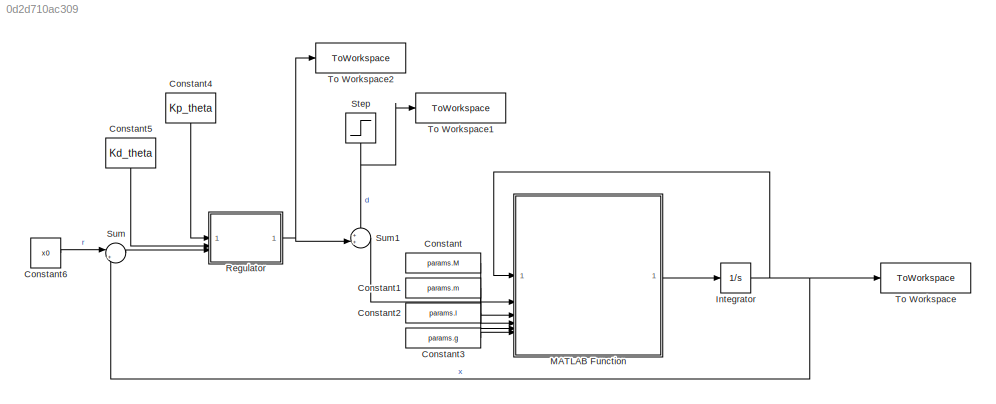
MODEL slx_0d2d710ac309
KIND model
CONFIG AbsTol = 1e-8
CONFIG EnableMultiTasking = off
CONFIG FixedStep = 0.04
CONFIG MaxStep = auto
CONFIG MinStep = auto
CONFIG RelTol = 1e-6
CONFIG SampleTimeConstraint = Unconstrained
CONFIG SolverName = VariableStepAuto
CONFIG StartTime = 0.0
CONFIG StopTime = 20.0
BLOCK [Constant] Constant
  Value = params.M
BLOCK [Constant] Constant1
  Value = params.m
BLOCK [Constant] Constant2
  Value = params.l
BLOCK [Constant] Constant3
  Value = params.g
BLOCK [Constant] Constant4
  NameLocation = left
  Value = Kp_theta
BLOCK [Constant] Constant5
  NameLocation = left
  Value = Kd_theta
BLOCK [Constant] Constant6
  Value = x0
BLOCK [Integrator] Integrator
  InitialCondition = [0;0;0;0]
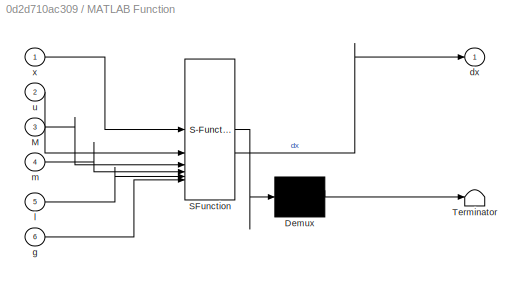
BLOCK [SubSystem] MATLAB Function
  ErrorFcn = Stateflow.Translate.translate
  PermitHierarchicalResolution = ExplicitOnly
  SFBlockType = MATLAB Function
  TreatAsAtomicUnit = on
BLOCK [Demux] MATLAB Function/ Demux 
  Outputs = 1
BLOCK [S-Function] MATLAB Function/ SFunction 
  EnableBusSupport = on
  FunctionName = sf_sfun
  PortCounts = [6 2]
  SFcnIsStateOwnerBlock = off
  SFunctionDeploymentMode = off
  Tag = Stateflow S-Function 2
BLOCK [Terminator] MATLAB Function/ Terminator 
BLOCK [Inport] MATLAB Function/M
  Port = 3
BLOCK [Outport] MATLAB Function/dx
  VectorParamsAs1DForOutWhenUnconnected = off
BLOCK [Inport] MATLAB Function/g
  Port = 6
BLOCK [Inport] MATLAB Function/l
  Port = 5
BLOCK [Inport] MATLAB Function/m
  Port = 4
BLOCK [Inport] MATLAB Function/u
  Port = 2
BLOCK [Inport] MATLAB Function/x
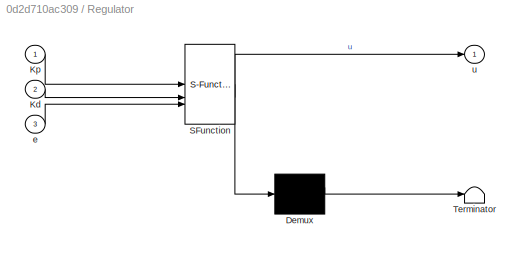
BLOCK [SubSystem] Regulator
  ErrorFcn = Stateflow.Translate.translate
  PermitHierarchicalResolution = ExplicitOnly
  SFBlockType = MATLAB Function
  TreatAsAtomicUnit = on
BLOCK [Demux] Regulator/ Demux 
  Outputs = 1
BLOCK [S-Function] Regulator/ SFunction 
  EnableBusSupport = on
  FunctionName = sf_sfun
  PortCounts = [3 2]
  SFcnIsStateOwnerBlock = off
  SFunctionDeploymentMode = off
  Tag = Stateflow S-Function 1
BLOCK [Terminator] Regulator/ Terminator 
BLOCK [Inport] Regulator/Kd
  Port = 2
BLOCK [Inport] Regulator/Kp
BLOCK [Inport] Regulator/e
  Port = 3
BLOCK [Outport] Regulator/u
BLOCK [Step] Step
  After = 0
  Before = 1
  NameLocation = left
  SampleTime = 0
  Time = 0.1
BLOCK [Sum] Sum
  Inputs = |+-
BLOCK [Sum] Sum1
  Inputs = ++|
BLOCK [ToWorkspace] To Workspace
  FixptAsFi = on
  MaxDataPoints = inf
  SampleTime = -1
  Save2DSignal = 2-D array (concatenate along first dimension)
  VariableName = x
BLOCK [ToWorkspace] To Workspace1
  FixptAsFi = on
  MaxDataPoints = inf
  SampleTime = -1
  Save2DSignal = 2-D array (concatenate along first dimension)
  VariableName = d
BLOCK [ToWorkspace] To Workspace2
  FixptAsFi = on
  MaxDataPoints = inf
  SampleTime = -1
  Save2DSignal = 2-D array (concatenate along first dimension)
  VariableName = u
LINE Constant1:1 -> MATLAB Function:4
LINE Constant2:1 -> MATLAB Function:5
LINE Constant3:1 -> MATLAB Function:6
LINE Constant4:1 -> Regulator:1
LINE Constant5:1 -> Regulator:2
LINE Constant6:1 -> Sum:1
LINE Constant:1 -> MATLAB Function:3
NET Integrator:1 -> MATLAB Function:1, Sum:2, To Workspace:1
LINE MATLAB Function:1 -> Integrator:1
NET Regulator:1 -> Sum1:2, To Workspace2:1
NET Step:1 -> Sum1:1, To Workspace1:1
LINE Sum1:1 -> MATLAB Function:2
LINE Sum:1 -> Regulator:3
note: NET lines group one-source signal fan-out (src -> all destinations, sorted); 1:1 wires keep LINE
CHART Regulator states=1 transitions=1
  STATE_LABEL 'eML_blk_kernel()'
  STATE_LABEL 'SCRIPT:\nfunction u = Regulator(Kp,Kd,e)\n\npd = @(x) Kp * e(3) + Kd * e(4);\nu=pd(e);\n'
CHART MATLAB Function states=1 transitions=1
  STATE_LABEL 'eML_blk_kernel()'
  STATE_LABEL 'SCRIPT:\nfunction dx = f( x, u, M, m, l, g)\n\n dx=[\n     x(2); % dx\n     (m*l*x(4)^2*sin(x(3))+m*g*sin(x(3))*cos(x(3))+u)/(M+m*sin(x(3))^2); % d2x\n     x(4);  % dtheta\n     ((M+m)*g/l*sin(x(3))-m*x(4)^2*cos(x(3))*sin(x(3))+(u)*cos(x(3))/l)/...\n     (M+m*sin(x(3))^2)]; %d2theta\n\nend'
CHART  states=0 transitions=0
CHART  states=0 transitions=0
